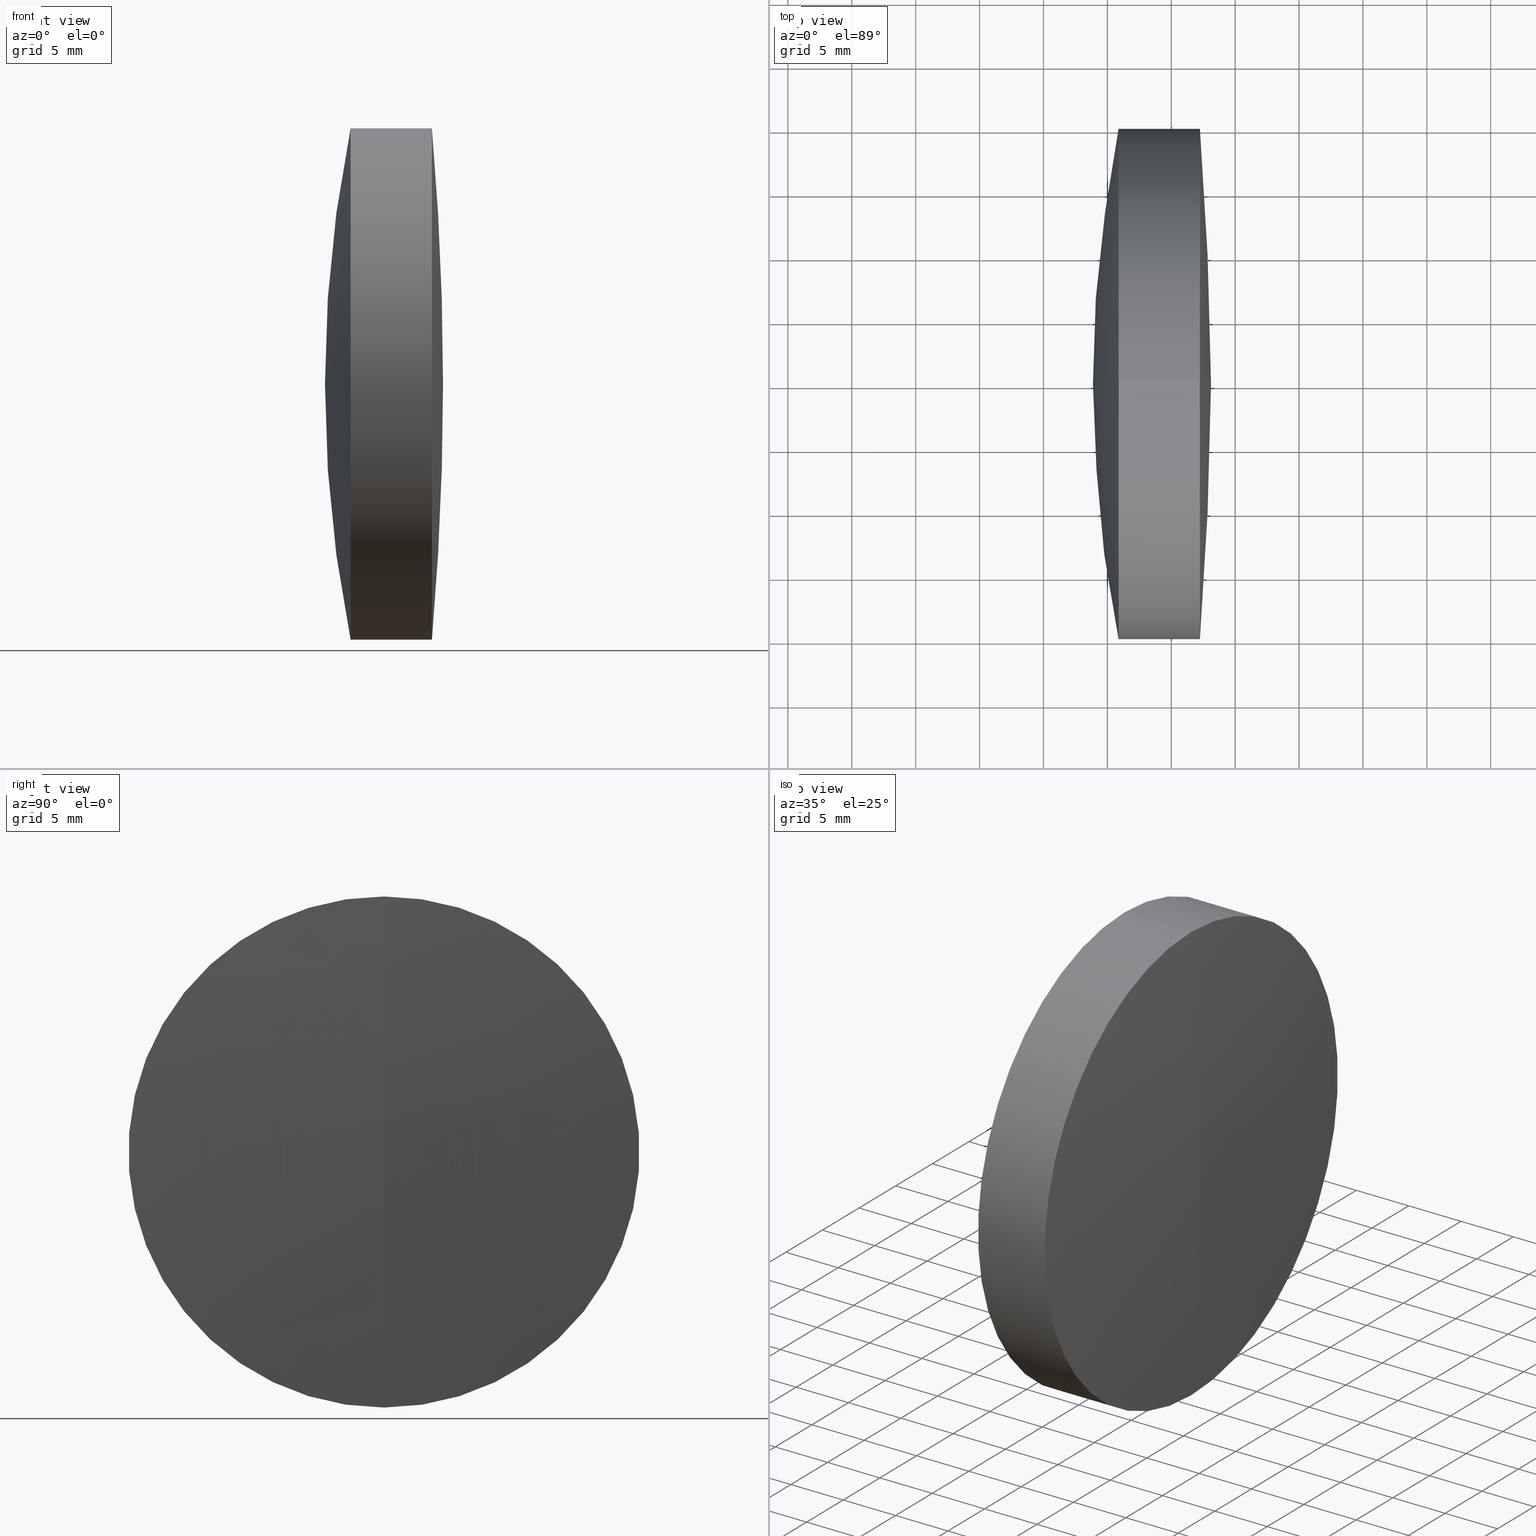
[diagram: canonical four-view strip — front | top / right | iso, engineering-drawing reading convention]
A machine part, canonical four-view strip (front | top / right | iso — engineering-drawing reading convention). The complete STEP part file that produces these views, byte-faithful:
ISO-10303-21;
HEADER;
FILE_DESCRIPTION (( 'STEP AP214' ),
    '1' );
FILE_NAME ('145074.STEP',
    '2019-05-15T09:08:55',
    ( 'user' ),
    ( '΢���й�' ),
    'SwSTEP 2.0',
    'SolidWorks 2016',
    '' );
FILE_SCHEMA (( 'AUTOMOTIVE_DESIGN' ));
ENDSEC;

DATA;
#1 =( NAMED_UNIT ( * ) PLANE_ANGLE_UNIT ( ) SI_UNIT ( $, .RADIAN. ) );
#2 = CARTESIAN_POINT ( 'NONE',  ( 57.82353035397189000, 0.0000000000000000000, 0.0000000000000000000 ) ) ;
#3 = ORIENTED_EDGE ( 'NONE', *, *, #109, .F. ) ;
#4 = ORIENTED_EDGE ( 'NONE', *, *, #201, .F. ) ;
#5 = EDGE_CURVE ( 'NONE', #336, #140, #345, .T. ) ;
#6 =( NAMED_UNIT ( * ) SI_UNIT ( $, .STERADIAN. ) SOLID_ANGLE_UNIT ( ) );
#7 = EDGE_LOOP ( 'NONE', ( #161, #152, #173, #55 ) ) ;
#8 = ORIENTED_EDGE ( 'NONE', *, *, #127, .T. ) ;
#9 = ORIENTED_EDGE ( 'NONE', *, *, #339, .T. ) ;
#10 = CIRCLE ( 'NONE', #272, 19.99999999999998900 ) ;
#11 = UNCERTAINTY_MEASURE_WITH_UNIT (LENGTH_MEASURE( 1.000000000000000100E-005 ), #189, 'distance_accuracy_value', 'NONE');
#12 = EDGE_LOOP ( 'NONE', ( #8, #291, #166, #93 ) ) ;
#13 = LINE ( 'NONE', #39, #203 ) ;
#14 = CIRCLE ( 'NONE', #213, 75.47900000000001300 ) ;
#15 = SPHERICAL_SURFACE ( 'NONE', #289, 75.47900000000001300 ) ;
#16 = AXIS2_PLACEMENT_3D ( 'NONE', #333, #305, #60 ) ;
#17 = SPHERICAL_SURFACE ( 'NONE', #236, 75.47900000000001300 ) ;
#18 = VERTEX_POINT ( 'NONE', #76 ) ;
#19 = ORIENTED_EDGE ( 'NONE', *, *, #310, .T. ) ;
#20 = VERTEX_POINT ( 'NONE', #186 ) ;
#21 = CARTESIAN_POINT ( 'NONE',  ( 0.0000000000000000000, 0.0000000000000000000, 0.0000000000000000000 ) ) ;
#22 = CYLINDRICAL_SURFACE ( 'NONE', #306, 20.00000000000000700 ) ;
#23 =( NAMED_UNIT ( * ) PLANE_ANGLE_UNIT ( ) SI_UNIT ( $, .RADIAN. ) );
#24 = CARTESIAN_POINT ( 'NONE',  ( 282.9165680011502700, 0.0000000000000000000, 0.0000000000000000000 ) ) ;
#25 = PRESENTATION_LAYER_ASSIGNMENT (  '', '', ( #319 ) ) ;
#26 = CARTESIAN_POINT ( 'NONE',  ( 280.8783964741982100, 0.0000000000000000000, 0.0000000000000000000 ) ) ;
#27 = SHAPE_DEFINITION_REPRESENTATION ( #92, #54 ) ;
#28 = AXIS2_PLACEMENT_3D ( 'NONE', #2, #165, #141 ) ;
#29 = SURFACE_STYLE_USAGE ( .BOTH. , #217 ) ;
#30 = FACE_OUTER_BOUND ( 'NONE', #7, .T. ) ;
#31 = DIRECTION ( 'NONE',  ( 0.0000000000000000000, 1.000000000000000000, 0.0000000000000000000 ) ) ;
#32 = ORIENTED_EDGE ( 'NONE', *, *, #290, .T. ) ;
#33 = CARTESIAN_POINT ( 'NONE',  ( 278.8745303539719200, 0.0000000000000000000, 2.885359799311880900E-016 ) ) ;
#34 = CIRCLE ( 'NONE', #28, 230.2909999999999700 ) ;
#35 = CARTESIAN_POINT ( 'NONE',  ( 282.9165680011502700, 0.0000000000000000000, 20.00000000000000700 ) ) ;
#36 = ORIENTED_EDGE ( 'NONE', *, *, #109, .T. ) ;
#37 = EDGE_CURVE ( 'NONE', #265, #94, #150, .T. ) ;
#38 =( LENGTH_UNIT ( ) NAMED_UNIT ( * ) SI_UNIT ( .MILLI., .METRE. ) );
#39 = CARTESIAN_POINT ( 'NONE',  ( -0.5519199926577972300, 2.449293598294708100E-015, -20.00000000000001100 ) ) ;
#40 = CLOSED_SHELL ( 'NONE', ( #43, #149, #44, #314, #210, #292 ) ) ;
#41 = ORIENTED_EDGE ( 'NONE', *, *, #296, .F. ) ;
#42 = AXIS2_PLACEMENT_3D ( 'NONE', #257, #225, #329 ) ;
#43 = ADVANCED_FACE ( 'NONE', ( #307 ), #66, .T. ) ;
#44 = ADVANCED_FACE ( 'NONE', ( #133 ), #17, .F. ) ;
#45 =( NAMED_UNIT ( * ) SI_UNIT ( $, .STERADIAN. ) SOLID_ANGLE_UNIT ( ) );
#46 = DIRECTION ( 'NONE',  ( 0.0000000000000000000, 0.0000000000000000000, 1.000000000000000000 ) ) ;
#47 = DIRECTION ( 'NONE',  ( 0.0000000000000000000, 0.0000000000000000000, 1.000000000000000000 ) ) ;
#48 = AXIS2_PLACEMENT_3D ( 'NONE', #283, #91, #259 ) ;
#49 = EDGE_LOOP ( 'NONE', ( #268, #95, #343 ) ) ;
#50 = CARTESIAN_POINT ( 'NONE',  ( 282.9165680011502700, 2.449293598294707300E-015, -20.00000000000000700 ) ) ;
#51 = DIRECTION ( 'NONE',  ( 0.0000000000000000000, 0.0000000000000000000, 1.000000000000000000 ) ) ;
#52 = AXIS2_PLACEMENT_3D ( 'NONE', #301, #119, #281 ) ;
#53 = FILL_AREA_STYLE ('',( #139 ) ) ;
#54 = ADVANCED_BREP_SHAPE_REPRESENTATION ( '145074', ( #80, #312, #286 ), #106 ) ;
#55 = ORIENTED_EDGE ( 'NONE', *, *, #324, .F. ) ;
#56 = CARTESIAN_POINT ( 'NONE',  ( 124.5233095260452400, 2.449293598294707300E-015, -20.00000000000000700 ) ) ;
#57 = DIRECTION ( 'NONE',  ( 0.0000000000000000000, -1.000000000000000000, -1.224646799147353200E-016 ) ) ;
#58 = AXIS2_PLACEMENT_3D ( 'NONE', #26, #187, #346 ) ;
#59 = SURFACE_STYLE_FILL_AREA ( #263 ) ;
#60 = DIRECTION ( 'NONE',  ( 0.0000000000000000000, 0.0000000000000000000, -1.000000000000000000 ) ) ;
#61 = FACE_OUTER_BOUND ( 'NONE', #72, .T. ) ;
#62 = DIRECTION ( 'NONE',  ( -1.000000000000000000, -0.0000000000000000000, -0.0000000000000000000 ) ) ;
#63 = EDGE_CURVE ( 'NONE', #69, #242, #13, .T. ) ;
#64 = SURFACE_SIDE_STYLE ('',( #59 ) ) ;
#65 = DIRECTION ( 'NONE',  ( -1.000000000000000000, -0.0000000000000000000, -0.0000000000000000000 ) ) ;
#66 = SPHERICAL_SURFACE ( 'NONE', #199, 230.2909999999999700 ) ;
#67 = VECTOR ( 'NONE', #321, 1000.000000000000000 ) ;
#68 = LINE ( 'NONE', #159, #67 ) ;
#69 = VERTEX_POINT ( 'NONE', #175 ) ;
#70 = AXIS2_PLACEMENT_3D ( 'NONE', #275, #82, #249 ) ;
#71 = ADVANCED_FACE ( 'NONE', ( #304 ), #22, .T. ) ;
#72 = EDGE_LOOP ( 'NONE', ( #279, #237, #176 ) ) ;
#73 = PRODUCT_RELATED_PRODUCT_CATEGORY ( 'part', '', ( #77 ) ) ;
#74 =( LENGTH_UNIT ( ) NAMED_UNIT ( * ) SI_UNIT ( .MILLI., .METRE. ) );
#75 = CARTESIAN_POINT ( 'NONE',  ( 287.2444201635094600, 0.0000000000000000000, 0.0000000000000000000 ) ) ;
#76 = CARTESIAN_POINT ( 'NONE',  ( 285.6145303539718700, 0.0000000000000000000, 1.022550920519092900E-014 ) ) ;
#77 = PRODUCT ( '145074', '145074', '', ( #154 ) ) ;
#78 = DIRECTION ( 'NONE',  ( -0.0000000000000000000, 1.000000000000000000, 1.224646799147353200E-016 ) ) ;
#79 = CARTESIAN_POINT ( 'NONE',  ( 287.2444201635094600, 0.0000000000000000000, 0.0000000000000000000 ) ) ;
#80 = MANIFOLD_SOLID_BREP ( '��ת1', #107 ) ;
#81 = STYLED_ITEM ( 'NONE', ( #224 ), #80 ) ;
#82 = DIRECTION ( 'NONE',  ( -1.000000000000000000, -0.0000000000000000000, -0.0000000000000000000 ) ) ;
#83 = ORIENTED_EDGE ( 'NONE', *, *, #328, .F. ) ;
#84 = DIRECTION ( 'NONE',  ( 0.0000000000000000000, -1.224646799147353500E-016, 1.000000000000000000 ) ) ;
#85 = FACE_OUTER_BOUND ( 'NONE', #338, .T. ) ;
#86 = COLOUR_RGB ( '',1.000000000000000000, 1.000000000000000000, 1.000000000000000000 ) ;
#87 = CARTESIAN_POINT ( 'NONE',  ( 285.6145303539718700, 0.0000000000000000000, 1.022550920519092900E-014 ) ) ;
#88 = EDGE_LOOP ( 'NONE', ( #99, #254, #181 ) ) ;
#89 = DIRECTION ( 'NONE',  ( -1.000000000000000000, -0.0000000000000000000, -0.0000000000000000000 ) ) ;
#90 = AXIS2_PLACEMENT_3D ( 'NONE', #24, #246, #47 ) ;
#91 = DIRECTION ( 'NONE',  ( -1.000000000000000000, -0.0000000000000000000, -0.0000000000000000000 ) ) ;
#92 = PRODUCT_DEFINITION_SHAPE ( 'NONE', 'NONE',  #298 ) ;
#93 = ORIENTED_EDGE ( 'NONE', *, *, #335, .F. ) ;
#94 = VERTEX_POINT ( 'NONE', #128 ) ;
#95 = ORIENTED_EDGE ( 'NONE', *, *, #212, .T. ) ;
#96 = UNCERTAINTY_MEASURE_WITH_UNIT (LENGTH_MEASURE( 1.000000000000000100E-005 ), #38, 'distance_accuracy_value', 'NONE');
#97 = DIRECTION ( 'NONE',  ( 0.0000000000000000000, 0.0000000000000000000, 1.000000000000000000 ) ) ;
#98 = EDGE_CURVE ( 'NONE', #94, #242, #192, .T. ) ;
#99 = ORIENTED_EDGE ( 'NONE', *, *, #212, .F. ) ;
#100 = EDGE_LOOP ( 'NONE', ( #41, #341, #311 ) ) ;
#101 = CYLINDRICAL_SURFACE ( 'NONE', #240, 20.00000000000001100 ) ;
#102 = VERTEX_POINT ( 'NONE', #308 ) ;
#103 = ORIENTED_EDGE ( 'NONE', *, *, #5, .F. ) ;
#104 = PRESENTATION_LAYER_ASSIGNMENT (  '', '', ( #81 ) ) ;
#105 = CYLINDRICAL_SURFACE ( 'NONE', #276, 20.00000000000001100 ) ;
#106 =( GEOMETRIC_REPRESENTATION_CONTEXT ( 3 ) GLOBAL_UNCERTAINTY_ASSIGNED_CONTEXT ( ( #315 ) ) GLOBAL_UNIT_ASSIGNED_CONTEXT ( ( #294, #23, #185 ) ) REPRESENTATION_CONTEXT ( 'NONE', 'WORKASPACE' ) );
#107 = CLOSED_SHELL ( 'NONE', ( #269, #71, #153, #132, #182, #270 ) ) ;
#108 = SURFACE_SIDE_STYLE ('',( #115 ) ) ;
#109 = EDGE_CURVE ( 'NONE', #242, #94, #277, .T. ) ;
#110 = SPHERICAL_SURFACE ( 'NONE', #300, 100.8089999999999500 ) ;
#111 = CARTESIAN_POINT ( 'NONE',  ( 57.82353035397189000, 0.0000000000000000000, 0.0000000000000000000 ) ) ;
#112 = AXIS2_PLACEMENT_3D ( 'NONE', #164, #299, #251 ) ;
#113 = DIRECTION ( 'NONE',  ( 0.0000000000000000000, -1.000000000000000000, 0.0000000000000000000 ) ) ;
#114 = ORIENTED_EDGE ( 'NONE', *, *, #335, .T. ) ;
#115 = SURFACE_STYLE_FILL_AREA ( #293 ) ;
#116 = CARTESIAN_POINT ( 'NONE',  ( 210.1355303539718600, 0.0000000000000000000, 5.603753417548774600E-015 ) ) ;
#117 = COLOUR_RGB ( '',1.000000000000000000, 1.000000000000000000, 1.000000000000000000 ) ;
#118 = CARTESIAN_POINT ( 'NONE',  ( 210.1355303539718600, 0.0000000000000000000, 5.603753417548774600E-015 ) ) ;
#119 = DIRECTION ( 'NONE',  ( 0.0000000000000000000, -1.000000000000000000, 0.0000000000000000000 ) ) ;
#120 = CYLINDRICAL_SURFACE ( 'NONE', #42, 20.00000000000000700 ) ;
#121 = DIRECTION ( 'NONE',  ( 0.0000000000000000000, 0.0000000000000000000, 1.000000000000000000 ) ) ;
#122 = CARTESIAN_POINT ( 'NONE',  ( 379.6835303539718300, 0.0000000000000000000, 6.461306938693461600E-015 ) ) ;
#123 = ORIENTED_EDGE ( 'NONE', *, *, #63, .F. ) ;
#124 =( GEOMETRIC_REPRESENTATION_CONTEXT ( 3 ) GLOBAL_UNCERTAINTY_ASSIGNED_CONTEXT ( ( #219 ) ) GLOBAL_UNIT_ASSIGNED_CONTEXT ( ( #74, #243, #45 ) ) REPRESENTATION_CONTEXT ( 'NONE', 'WORKASPACE' ) );
#125 = DIRECTION ( 'NONE',  ( -1.000000000000000000, -0.0000000000000000000, -0.0000000000000000000 ) ) ;
#126 = DIRECTION ( 'NONE',  ( 0.0000000000000000000, 0.0000000000000000000, 1.000000000000000000 ) ) ;
#127 = EDGE_CURVE ( 'NONE', #140, #336, #239, .T. ) ;
#128 = CARTESIAN_POINT ( 'NONE',  ( 282.9165680011502700, 0.0000000000000000000, 20.00000000000003200 ) ) ;
#129 = DIRECTION ( 'NONE',  ( 0.0000000000000000000, 0.0000000000000000000, -1.000000000000000000 ) ) ;
#130 = ORIENTED_EDGE ( 'NONE', *, *, #201, .T. ) ;
#131 = AXIS2_PLACEMENT_3D ( 'NONE', #221, #222, #191 ) ;
#132 = ADVANCED_FACE ( 'NONE', ( #168 ), #171, .T. ) ;
#133 = FACE_OUTER_BOUND ( 'NONE', #260, .T. ) ;
#134 = ORIENTED_EDGE ( 'NONE', *, *, #310, .F. ) ;
#135 = APPLICATION_PROTOCOL_DEFINITION ( 'draft international standard', 'automotive_design', 1998, #317 ) ;
#136 = APPLICATION_CONTEXT ( 'automotive_design' ) ;
#137 = CARTESIAN_POINT ( 'NONE',  ( 124.5233095260452400, 0.0000000000000000000, 20.00000000000000700 ) ) ;
#138 = DIRECTION ( 'NONE',  ( 0.0000000000000000000, 0.0000000000000000000, -1.000000000000000000 ) ) ;
#139 = FILL_AREA_STYLE_COLOUR ( '', #148 ) ;
#140 = VERTEX_POINT ( 'NONE', #35 ) ;
#141 = DIRECTION ( 'NONE',  ( 0.0000000000000000000, -1.224646799147353200E-016, 1.000000000000000000 ) ) ;
#142 = CARTESIAN_POINT ( 'NONE',  ( 282.9165680011502700, 2.449293598294710100E-015, -20.00000000000002500 ) ) ;
#143 = CARTESIAN_POINT ( 'NONE',  ( 379.6835303539718300, 0.0000000000000000000, 6.461306938693461600E-015 ) ) ;
#144 = DIRECTION ( 'NONE',  ( 0.0000000000000000000, 1.000000000000000000, 0.0000000000000000000 ) ) ;
#145 = AXIS2_PLACEMENT_3D ( 'NONE', #118, #280, #253 ) ;
#146 = DIRECTION ( 'NONE',  ( 0.0000000000000000000, 0.0000000000000000000, 1.000000000000000000 ) ) ;
#147 = ORIENTED_EDGE ( 'NONE', *, *, #331, .T. ) ;
#148 = COLOUR_RGB ( '',1.000000000000000000, 1.000000000000000000, 1.000000000000000000 ) ;
#149 = ADVANCED_FACE ( 'NONE', ( #30 ), #105, .T. ) ;
#150 = CIRCLE ( 'NONE', #151, 75.47900000000001300 ) ;
#151 = AXIS2_PLACEMENT_3D ( 'NONE', #325, #113, #129 ) ;
#152 = ORIENTED_EDGE ( 'NONE', *, *, #63, .T. ) ;
#153 = ADVANCED_FACE ( 'NONE', ( #167 ), #110, .T. ) ;
#154 = PRODUCT_CONTEXT ( 'NONE', #136, 'mechanical' ) ;
#155 = ORIENTED_EDGE ( 'NONE', *, *, #296, .T. ) ;
#156 = PRODUCT_DEFINITION_CONTEXT ( 'detailed design', #317, 'design' ) ;
#157 = APPLICATION_PROTOCOL_DEFINITION ( 'draft international standard', 'automotive_design', 1998, #136 ) ;
#158 = AXIS2_PLACEMENT_3D ( 'NONE', #162, #323, #138 ) ;
#159 = CARTESIAN_POINT ( 'NONE',  ( -0.5519199926577972300, 0.0000000000000000000, 20.00000000000001100 ) ) ;
#160 =( NAMED_UNIT ( * ) SI_UNIT ( $, .STERADIAN. ) SOLID_ANGLE_UNIT ( ) );
#161 = ORIENTED_EDGE ( 'NONE', *, *, #313, .T. ) ;
#162 = CARTESIAN_POINT ( 'NONE',  ( 210.1355303539718600, 0.0000000000000000000, 5.603753417548774600E-015 ) ) ;
#163 = CIRCLE ( 'NONE', #70, 20.00000000000000700 ) ;
#164 = CARTESIAN_POINT ( 'NONE',  ( 57.82353035397189000, 0.0000000000000000000, 0.0000000000000000000 ) ) ;
#165 = DIRECTION ( 'NONE',  ( -0.0000000000000000000, 1.000000000000000000, 1.224646799147353200E-016 ) ) ;
#166 = ORIENTED_EDGE ( 'NONE', *, *, #331, .F. ) ;
#167 = FACE_OUTER_BOUND ( 'NONE', #316, .T. ) ;
#168 = FACE_OUTER_BOUND ( 'NONE', #205, .T. ) ;
#169 = CARTESIAN_POINT ( 'NONE',  ( -0.5519199926577972300, 0.0000000000000000000, 0.0000000000000000000 ) ) ;
#170 = DIRECTION ( 'NONE',  ( -0.0000000000000000000, -1.000000000000000000, -0.0000000000000000000 ) ) ;
#171 = SPHERICAL_SURFACE ( 'NONE', #16, 100.8089999999999500 ) ;
#172 = CARTESIAN_POINT ( 'NONE',  ( 282.9165680011502700, 0.0000000000000000000, 0.0000000000000000000 ) ) ;
#173 = ORIENTED_EDGE ( 'NONE', *, *, #98, .F. ) ;
#174 = STYLED_ITEM ( 'NONE', ( #244 ), #312 ) ;
#175 = CARTESIAN_POINT ( 'NONE',  ( 287.2444201635094600, 2.449293598294706500E-015, -19.99999999999998900 ) ) ;
#176 = ORIENTED_EDGE ( 'NONE', *, *, #98, .T. ) ;
#177 = DIRECTION ( 'NONE',  ( 0.0000000000000000000, 1.000000000000000000, 0.0000000000000000000 ) ) ;
#178 = ORIENTED_EDGE ( 'NONE', *, *, #37, .F. ) ;
#179 = CIRCLE ( 'NONE', #58, 20.00000000000000700 ) ;
#180 = AXIS2_PLACEMENT_3D ( 'NONE', #116, #278, #84 ) ;
#181 = ORIENTED_EDGE ( 'NONE', *, *, #313, .F. ) ;
#182 = ADVANCED_FACE ( 'NONE', ( #85 ), #120, .T. ) ;
#183 = CIRCLE ( 'NONE', #340, 100.8089999999999500 ) ;
#184 = DIRECTION ( 'NONE',  ( 0.0000000000000000000, 0.0000000000000000000, 1.000000000000000000 ) ) ;
#185 =( NAMED_UNIT ( * ) SI_UNIT ( $, .STERADIAN. ) SOLID_ANGLE_UNIT ( ) );
#186 = CARTESIAN_POINT ( 'NONE',  ( 280.8783964741982100, -2.449293598294705300E-015, 19.99999999999999600 ) ) ;
#187 = DIRECTION ( 'NONE',  ( -1.000000000000000000, -0.0000000000000000000, -0.0000000000000000000 ) ) ;
#188 = EDGE_CURVE ( 'NONE', #214, #220, #226, .T. ) ;
#189 =( LENGTH_UNIT ( ) NAMED_UNIT ( * ) SI_UNIT ( .MILLI., .METRE. ) );
#190 = AXIS2_PLACEMENT_3D ( 'NONE', #172, #330, #146 ) ;
#191 = DIRECTION ( 'NONE',  ( 0.0000000000000000000, 0.0000000000000000000, 1.000000000000000000 ) ) ;
#192 = CIRCLE ( 'NONE', #261, 20.00000000000003200 ) ;
#193 = AXIS2_PLACEMENT_3D ( 'NONE', #143, #302, #121 ) ;
#194 = ORIENTED_EDGE ( 'NONE', *, *, #258, .F. ) ;
#195 = DIRECTION ( 'NONE',  ( -1.000000000000000000, -0.0000000000000000000, -0.0000000000000000000 ) ) ;
#196 = CARTESIAN_POINT ( 'NONE',  ( 287.2444201635094600, 0.0000000000000000000, 19.99999999999998900 ) ) ;
#197 = AXIS2_PLACEMENT_3D ( 'NONE', #79, #248, #51 ) ;
#198 = CARTESIAN_POINT ( 'NONE',  ( -0.5519199926577972300, 0.0000000000000000000, 0.0000000000000000000 ) ) ;
#199 = AXIS2_PLACEMENT_3D ( 'NONE', #111, #177, #287 ) ;
#200 =( NAMED_UNIT ( * ) PLANE_ANGLE_UNIT ( ) SI_UNIT ( $, .RADIAN. ) );
#201 = EDGE_CURVE ( 'NONE', #20, #220, #183, .T. ) ;
#202 = CARTESIAN_POINT ( 'NONE',  ( 124.5233095260452400, 0.0000000000000000000, 0.0000000000000000000 ) ) ;
#203 = VECTOR ( 'NONE', #65, 1000.000000000000000 ) ;
#204 = ORIENTED_EDGE ( 'NONE', *, *, #324, .T. ) ;
#205 = EDGE_LOOP ( 'NONE', ( #4, #147, #267 ) ) ;
#206 = FACE_OUTER_BOUND ( 'NONE', #100, .T. ) ;
#207 = SPHERICAL_SURFACE ( 'NONE', #131, 75.47900000000001300 ) ;
#208 = ORIENTED_EDGE ( 'NONE', *, *, #188, .F. ) ;
#209 = MECHANICAL_DESIGN_GEOMETRIC_PRESENTATION_REPRESENTATION (  '', ( #174 ), #238 ) ;
#210 = ADVANCED_FACE ( 'NONE', ( #303 ), #101, .T. ) ;
#211 = LINE ( 'NONE', #56, #233 ) ;
#212 = EDGE_CURVE ( 'NONE', #102, #241, #215, .T. ) ;
#213 = AXIS2_PLACEMENT_3D ( 'NONE', #273, #78, #247 ) ;
#214 = VERTEX_POINT ( 'NONE', #326 ) ;
#215 = CIRCLE ( 'NONE', #52, 230.2909999999999700 ) ;
#216 = DIRECTION ( 'NONE',  ( 0.0000000000000000000, 0.0000000000000000000, 1.000000000000000000 ) ) ;
#217 = SURFACE_SIDE_STYLE ('',( #282 ) ) ;
#218 = EDGE_LOOP ( 'NONE', ( #123, #9, #204, #3 ) ) ;
#219 = UNCERTAINTY_MEASURE_WITH_UNIT (LENGTH_MEASURE( 1.000000000000000100E-005 ), #74, 'distance_accuracy_value', 'NONE');
#220 = VERTEX_POINT ( 'NONE', #33 ) ;
#221 = CARTESIAN_POINT ( 'NONE',  ( 210.1355303539718600, 0.0000000000000000000, 5.603753417548774600E-015 ) ) ;
#222 = DIRECTION ( 'NONE',  ( 0.0000000000000000000, 1.000000000000000000, 0.0000000000000000000 ) ) ;
#223 = DIRECTION ( 'NONE',  ( 0.0000000000000000000, 1.224646799147353200E-016, -1.000000000000000000 ) ) ;
#224 = PRESENTATION_STYLE_ASSIGNMENT (( #230 ) ) ;
#225 = DIRECTION ( 'NONE',  ( -1.000000000000000000, -0.0000000000000000000, -0.0000000000000000000 ) ) ;
#226 = CIRCLE ( 'NONE', #193, 100.8089999999999500 ) ;
#227 = DIRECTION ( 'NONE',  ( 0.0000000000000000000, 0.0000000000000000000, -1.000000000000000000 ) ) ;
#228 = SPHERICAL_SURFACE ( 'NONE', #112, 230.2909999999999700 ) ;
#229 = DIRECTION ( 'NONE',  ( 0.0000000000000000000, 0.0000000000000000000, 1.000000000000000000 ) ) ;
#230 = SURFACE_STYLE_USAGE ( .BOTH. , #64 ) ;
#231 = EDGE_LOOP ( 'NONE', ( #83, #155, #103 ) ) ;
#232 = PRESENTATION_LAYER_ASSIGNMENT (  '', '', ( #174 ) ) ;
#233 = VECTOR ( 'NONE', #195, 1000.000000000000000 ) ;
#234 = DIRECTION ( 'NONE',  ( 0.0000000000000000000, 0.0000000000000000000, 1.000000000000000000 ) ) ;
#235 = VECTOR ( 'NONE', #295, 1000.000000000000000 ) ;
#236 = AXIS2_PLACEMENT_3D ( 'NONE', #264, #144, #234 ) ;
#237 = ORIENTED_EDGE ( 'NONE', *, *, #37, .T. ) ;
#238 =( GEOMETRIC_REPRESENTATION_CONTEXT ( 3 ) GLOBAL_UNCERTAINTY_ASSIGNED_CONTEXT ( ( #11 ) ) GLOBAL_UNIT_ASSIGNED_CONTEXT ( ( #189, #1, #160 ) ) REPRESENTATION_CONTEXT ( 'NONE', 'WORKASPACE' ) );
#239 = CIRCLE ( 'NONE', #48, 20.00000000000000700 ) ;
#240 = AXIS2_PLACEMENT_3D ( 'NONE', #169, #89, #327 ) ;
#241 = VERTEX_POINT ( 'NONE', #196 ) ;
#242 = VERTEX_POINT ( 'NONE', #142 ) ;
#243 =( NAMED_UNIT ( * ) PLANE_ANGLE_UNIT ( ) SI_UNIT ( $, .RADIAN. ) );
#244 = PRESENTATION_STYLE_ASSIGNMENT (( #29 ) ) ;
#245 = DIRECTION ( 'NONE',  ( -1.000000000000000000, -0.0000000000000000000, -0.0000000000000000000 ) ) ;
#246 = DIRECTION ( 'NONE',  ( -1.000000000000000000, -0.0000000000000000000, -0.0000000000000000000 ) ) ;
#247 = DIRECTION ( 'NONE',  ( 0.0000000000000000000, -1.224646799147353500E-016, 1.000000000000000000 ) ) ;
#248 = DIRECTION ( 'NONE',  ( -1.000000000000000000, -0.0000000000000000000, -0.0000000000000000000 ) ) ;
#249 = DIRECTION ( 'NONE',  ( 0.0000000000000000000, 0.0000000000000000000, 1.000000000000000000 ) ) ;
#250 = EDGE_CURVE ( 'NONE', #102, #69, #34, .T. ) ;
#251 = DIRECTION ( 'NONE',  ( 0.0000000000000000000, 0.0000000000000000000, 1.000000000000000000 ) ) ;
#252 = SPHERICAL_SURFACE ( 'NONE', #145, 75.47900000000001300 ) ;
#253 = DIRECTION ( 'NONE',  ( 0.0000000000000000000, 0.0000000000000000000, 1.000000000000000000 ) ) ;
#254 = ORIENTED_EDGE ( 'NONE', *, *, #250, .T. ) ;
#255 = FACE_OUTER_BOUND ( 'NONE', #49, .T. ) ;
#256 = CARTESIAN_POINT ( 'NONE',  ( 379.6835303539718300, 0.0000000000000000000, 6.461306938693461600E-015 ) ) ;
#257 = CARTESIAN_POINT ( 'NONE',  ( 124.5233095260452400, 0.0000000000000000000, 0.0000000000000000000 ) ) ;
#258 = EDGE_CURVE ( 'NONE', #336, #214, #211, .T. ) ;
#259 = DIRECTION ( 'NONE',  ( 0.0000000000000000000, 0.0000000000000000000, 1.000000000000000000 ) ) ;
#260 = EDGE_LOOP ( 'NONE', ( #178, #32, #36 ) ) ;
#261 = AXIS2_PLACEMENT_3D ( 'NONE', #262, #62, #229 ) ;
#262 = CARTESIAN_POINT ( 'NONE',  ( 282.9165680011502700, 0.0000000000000000000, 0.0000000000000000000 ) ) ;
#263 = FILL_AREA_STYLE ('',( #285 ) ) ;
#264 = CARTESIAN_POINT ( 'NONE',  ( 210.1355303539718600, 0.0000000000000000000, 5.603753417548774600E-015 ) ) ;
#265 = VERTEX_POINT ( 'NONE', #87 ) ;
#266 = LINE ( 'NONE', #137, #235 ) ;
#267 = ORIENTED_EDGE ( 'NONE', *, *, #188, .T. ) ;
#268 = ORIENTED_EDGE ( 'NONE', *, *, #250, .F. ) ;
#269 = ADVANCED_FACE ( 'NONE', ( #206 ), #252, .T. ) ;
#270 = ADVANCED_FACE ( 'NONE', ( #284 ), #207, .T. ) ;
#271 = SURFACE_STYLE_USAGE ( .BOTH. , #108 ) ;
#272 = AXIS2_PLACEMENT_3D ( 'NONE', #75, #245, #46 ) ;
#273 = CARTESIAN_POINT ( 'NONE',  ( 210.1355303539718600, 0.0000000000000000000, 5.603753417548774600E-015 ) ) ;
#274 = MECHANICAL_DESIGN_GEOMETRIC_PRESENTATION_REPRESENTATION (  '', ( #81 ), #322 ) ;
#275 = CARTESIAN_POINT ( 'NONE',  ( 280.8783964741982100, 0.0000000000000000000, 0.0000000000000000000 ) ) ;
#276 = AXIS2_PLACEMENT_3D ( 'NONE', #198, #125, #126 ) ;
#277 = CIRCLE ( 'NONE', #190, 20.00000000000003200 ) ;
#278 = DIRECTION ( 'NONE',  ( -0.0000000000000000000, 1.000000000000000000, 1.224646799147353200E-016 ) ) ;
#279 = ORIENTED_EDGE ( 'NONE', *, *, #290, .F. ) ;
#280 = DIRECTION ( 'NONE',  ( 0.0000000000000000000, 1.000000000000000000, 0.0000000000000000000 ) ) ;
#281 = DIRECTION ( 'NONE',  ( 0.0000000000000000000, 0.0000000000000000000, -1.000000000000000000 ) ) ;
#282 = SURFACE_STYLE_FILL_AREA ( #53 ) ;
#283 = CARTESIAN_POINT ( 'NONE',  ( 282.9165680011502700, 0.0000000000000000000, 0.0000000000000000000 ) ) ;
#284 = FACE_OUTER_BOUND ( 'NONE', #231, .T. ) ;
#285 = FILL_AREA_STYLE_COLOUR ( '', #117 ) ;
#286 = AXIS2_PLACEMENT_3D ( 'NONE', #21, #184, #344 ) ;
#287 = DIRECTION ( 'NONE',  ( 0.0000000000000000000, 0.0000000000000000000, 1.000000000000000000 ) ) ;
#288 = ORIENTED_EDGE ( 'NONE', *, *, #5, .T. ) ;
#289 = AXIS2_PLACEMENT_3D ( 'NONE', #297, #31, #216 ) ;
#290 = EDGE_CURVE ( 'NONE', #265, #242, #318, .T. ) ;
#291 = ORIENTED_EDGE ( 'NONE', *, *, #258, .T. ) ;
#292 = ADVANCED_FACE ( 'NONE', ( #255 ), #228, .T. ) ;
#293 = FILL_AREA_STYLE ('',( #320 ) ) ;
#294 =( LENGTH_UNIT ( ) NAMED_UNIT ( * ) SI_UNIT ( .MILLI., .METRE. ) );
#295 = DIRECTION ( 'NONE',  ( -1.000000000000000000, -0.0000000000000000000, -0.0000000000000000000 ) ) ;
#296 = EDGE_CURVE ( 'NONE', #18, #140, #347, .T. ) ;
#297 = CARTESIAN_POINT ( 'NONE',  ( 210.1355303539718600, 0.0000000000000000000, 5.603753417548774600E-015 ) ) ;
#298 = PRODUCT_DEFINITION ( 'δ֪', '', #334, #156 ) ;
#299 = DIRECTION ( 'NONE',  ( 0.0000000000000000000, 1.000000000000000000, 0.0000000000000000000 ) ) ;
#300 = AXIS2_PLACEMENT_3D ( 'NONE', #122, #170, #227 ) ;
#301 = CARTESIAN_POINT ( 'NONE',  ( 57.82353035397189000, 0.0000000000000000000, 0.0000000000000000000 ) ) ;
#302 = DIRECTION ( 'NONE',  ( 0.0000000000000000000, 1.000000000000000000, -0.0000000000000000000 ) ) ;
#303 = FACE_OUTER_BOUND ( 'NONE', #218, .T. ) ;
#304 = FACE_OUTER_BOUND ( 'NONE', #12, .T. ) ;
#305 = DIRECTION ( 'NONE',  ( -0.0000000000000000000, -1.000000000000000000, -0.0000000000000000000 ) ) ;
#306 = AXIS2_PLACEMENT_3D ( 'NONE', #202, #309, #97 ) ;
#307 = FACE_OUTER_BOUND ( 'NONE', #88, .T. ) ;
#308 = CARTESIAN_POINT ( 'NONE',  ( 288.1145303539718200, 0.0000000000000000000, 1.410125680112215500E-014 ) ) ;
#309 = DIRECTION ( 'NONE',  ( -1.000000000000000000, -0.0000000000000000000, -0.0000000000000000000 ) ) ;
#310 = EDGE_CURVE ( 'NONE', #214, #20, #163, .T. ) ;
#311 = ORIENTED_EDGE ( 'NONE', *, *, #127, .F. ) ;
#312 = MANIFOLD_SOLID_BREP ( '��ת3', #40 ) ;
#313 = EDGE_CURVE ( 'NONE', #241, #69, #342, .T. ) ;
#314 = ADVANCED_FACE ( 'NONE', ( #61 ), #15, .F. ) ;
#315 = UNCERTAINTY_MEASURE_WITH_UNIT (LENGTH_MEASURE( 1.000000000000000100E-005 ), #294, 'distance_accuracy_value', 'NONE');
#316 = EDGE_LOOP ( 'NONE', ( #19, #130, #208 ) ) ;
#317 = APPLICATION_CONTEXT ( 'automotive_design' ) ;
#318 = CIRCLE ( 'NONE', #180, 75.47900000000001300 ) ;
#319 = STYLED_ITEM ( 'NONE', ( #332 ), #54 ) ;
#320 = FILL_AREA_STYLE_COLOUR ( '', #86 ) ;
#321 = DIRECTION ( 'NONE',  ( -1.000000000000000000, -0.0000000000000000000, -0.0000000000000000000 ) ) ;
#322 =( GEOMETRIC_REPRESENTATION_CONTEXT ( 3 ) GLOBAL_UNCERTAINTY_ASSIGNED_CONTEXT ( ( #96 ) ) GLOBAL_UNIT_ASSIGNED_CONTEXT ( ( #38, #200, #6 ) ) REPRESENTATION_CONTEXT ( 'NONE', 'WORKASPACE' ) );
#323 = DIRECTION ( 'NONE',  ( 0.0000000000000000000, -1.000000000000000000, 0.0000000000000000000 ) ) ;
#324 = EDGE_CURVE ( 'NONE', #241, #94, #68, .T. ) ;
#325 = CARTESIAN_POINT ( 'NONE',  ( 210.1355303539718600, 0.0000000000000000000, 5.603753417548774600E-015 ) ) ;
#326 = CARTESIAN_POINT ( 'NONE',  ( 280.8783964741982100, 0.0000000000000000000, -19.99999999999998900 ) ) ;
#327 = DIRECTION ( 'NONE',  ( 0.0000000000000000000, 0.0000000000000000000, 1.000000000000000000 ) ) ;
#328 = EDGE_CURVE ( 'NONE', #18, #336, #14, .T. ) ;
#329 = DIRECTION ( 'NONE',  ( 0.0000000000000000000, 0.0000000000000000000, 1.000000000000000000 ) ) ;
#330 = DIRECTION ( 'NONE',  ( -1.000000000000000000, -0.0000000000000000000, -0.0000000000000000000 ) ) ;
#331 = EDGE_CURVE ( 'NONE', #20, #214, #179, .T. ) ;
#332 = PRESENTATION_STYLE_ASSIGNMENT (( #271 ) ) ;
#333 = CARTESIAN_POINT ( 'NONE',  ( 379.6835303539718300, 0.0000000000000000000, 6.461306938693461600E-015 ) ) ;
#334 = PRODUCT_DEFINITION_FORMATION_WITH_SPECIFIED_SOURCE ( '�κ�', '', #77, .NOT_KNOWN. ) ;
#335 = EDGE_CURVE ( 'NONE', #140, #20, #266, .T. ) ;
#336 = VERTEX_POINT ( 'NONE', #50 ) ;
#337 = MECHANICAL_DESIGN_GEOMETRIC_PRESENTATION_REPRESENTATION (  '', ( #319 ), #124 ) ;
#338 = EDGE_LOOP ( 'NONE', ( #194, #288, #114, #134 ) ) ;
#339 = EDGE_CURVE ( 'NONE', #69, #241, #10, .T. ) ;
#340 = AXIS2_PLACEMENT_3D ( 'NONE', #256, #57, #223 ) ;
#341 = ORIENTED_EDGE ( 'NONE', *, *, #328, .T. ) ;
#342 = CIRCLE ( 'NONE', #197, 19.99999999999998900 ) ;
#343 = ORIENTED_EDGE ( 'NONE', *, *, #339, .F. ) ;
#344 = DIRECTION ( 'NONE',  ( 1.000000000000000000, 0.0000000000000000000, 0.0000000000000000000 ) ) ;
#345 = CIRCLE ( 'NONE', #90, 20.00000000000000700 ) ;
#346 = DIRECTION ( 'NONE',  ( 0.0000000000000000000, 0.0000000000000000000, 1.000000000000000000 ) ) ;
#347 = CIRCLE ( 'NONE', #158, 75.47900000000001300 ) ;
ENDSEC;
END-ISO-10303-21;
